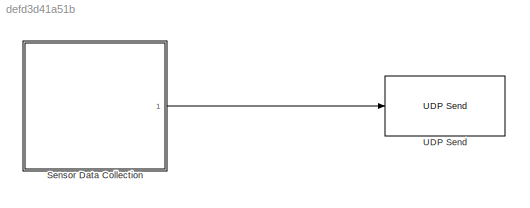
MODEL slx_defd3d41a51b
KIND model
CONFIG AbsTol = auto
CONFIG EnableMultiTasking = off
CONFIG FixedStep = auto
CONFIG MaxStep = auto
CONFIG MinStep = auto
CONFIG RelTol = 1e-3
CONFIG SampleTimeConstraint = Unconstrained
CONFIG SolverName = FixedStepAuto
CONFIG StartTime = 0.0
CONFIG StopTime = 10.0
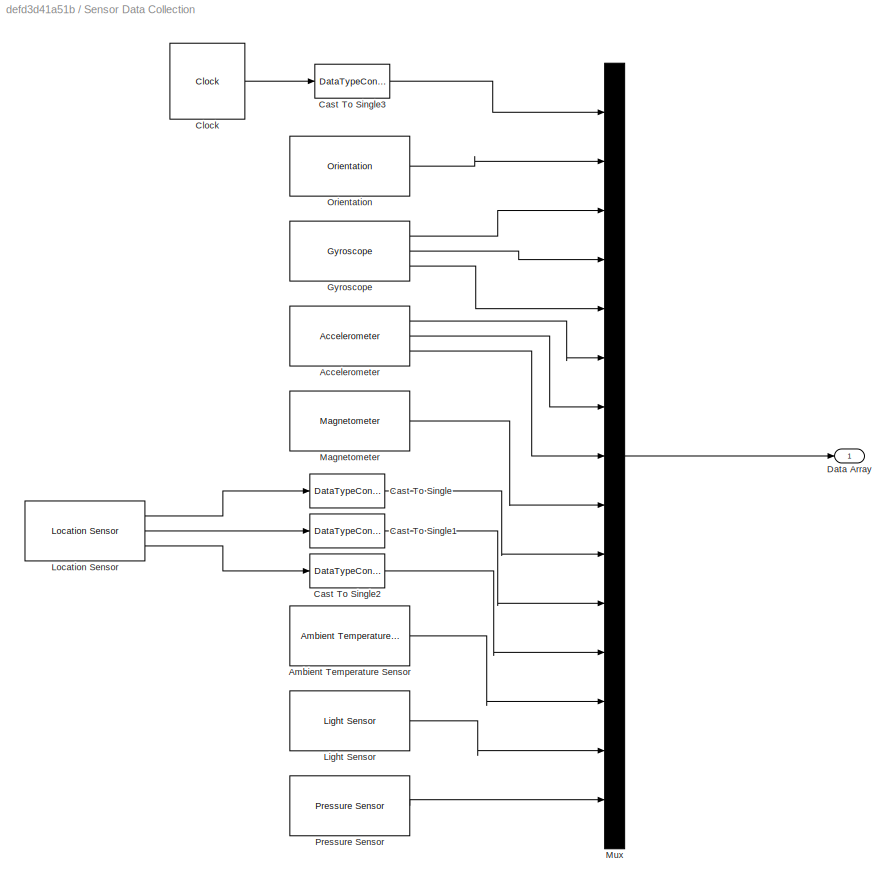
BLOCK [SubSystem] Sensor Data Collection
  Ports = [0, 1]
  RequestExecContextInheritance = off
BLOCK [Reference] Sensor Data Collection/Accelerometer  REF=androidsensorlib/Accelerometer
  Ports = [0, 3]
  SourceBlock = androidsensorlib/Accelerometer
  SourceProductBaseCode = ANDROID
  SourceType = codertarget.internal.androidAccelerometer
BLOCK [Reference] Sensor Data Collection/Ambient Temperature Sensor  REF=androidsensorlib/Ambient Temperature Sensor
  Ports = [0, 1]
  SourceBlock = androidsensorlib/Ambient Temperature Sensor
  SourceProductBaseCode = ANDROID
  SourceType = codertarget.internal.androidAmbientTemperature
BLOCK [DataTypeConversion] Sensor Data Collection/Cast To Single
  OutDataTypeStr = single
  RndMeth = Floor
  SaturateOnIntegerOverflow = off
BLOCK [DataTypeConversion] Sensor Data Collection/Cast To Single1
  OutDataTypeStr = single
  RndMeth = Floor
  SaturateOnIntegerOverflow = off
BLOCK [DataTypeConversion] Sensor Data Collection/Cast To Single2
  OutDataTypeStr = single
  RndMeth = Floor
  SaturateOnIntegerOverflow = off
BLOCK [DataTypeConversion] Sensor Data Collection/Cast To Single3
  OutDataTypeStr = single
  RndMeth = Floor
  SaturateOnIntegerOverflow = off
BLOCK [Clock] Sensor Data Collection/Clock
  DisplayTime = on
BLOCK [Outport] Sensor Data Collection/Data Array
BLOCK [Reference] Sensor Data Collection/Gyroscope  REF=androidsensorlib/Gyroscope
  Ports = [0, 3]
  SourceBlock = androidsensorlib/Gyroscope
  SourceProductBaseCode = ANDROID
  SourceType = codertarget.internal.androidGyroscope
BLOCK [Reference] Sensor Data Collection/Light Sensor  REF=androidsensorlib/Light Sensor
  Ports = [0, 1]
  SourceBlock = androidsensorlib/Light Sensor
  SourceProductBaseCode = ANDROID
  SourceType = codertarget.internal.androidLight
BLOCK [Reference] Sensor Data Collection/Location Sensor  REF=androidsensorlib/Location Sensor
  Ports = [0, 3]
  SourceBlock = androidsensorlib/Location Sensor
  SourceProductBaseCode = ANDROID
  SourceType = codertarget.internal.androidLocation
BLOCK [Reference] Sensor Data Collection/Magnetometer  REF=androidsensorlib/Magnetometer
  Ports = [0, 1]
  SourceBlock = androidsensorlib/Magnetometer
  SourceProductBaseCode = ANDROID
  SourceType = codertarget.internal.androidMagnetometer
BLOCK [Mux] Sensor Data Collection/Mux
  DisplayOption = bar
  Inputs = 15
  Ports = [15, 1]
BLOCK [Reference] Sensor Data Collection/Orientation  REF=androidsensorlib/Orientation
  Ports = [0, 1]
  SourceBlock = androidsensorlib/Orientation
  SourceProductBaseCode = ANDROID
  SourceType = codertarget.internal.androidOrientation
BLOCK [Reference] Sensor Data Collection/Pressure Sensor  REF=androidsensorlib/Pressure Sensor
  Ports = [0, 1]
  SourceBlock = androidsensorlib/Pressure Sensor
  SourceProductBaseCode = ANDROID
  SourceType = codertarget.internal.androidPressure
BLOCK [Reference] UDP Send  REF=androidcommunicationlib/UDP Send
  Ports = [1]
  SourceBlock = androidcommunicationlib/UDP Send
  SourceProductBaseCode = ANDROID
  SourceType = UDP Send
LINE Sensor Data Collection/Accelerometer:1 -> Sensor Data Collection/Mux:6
LINE Sensor Data Collection/Accelerometer:2 -> Sensor Data Collection/Mux:7
LINE Sensor Data Collection/Accelerometer:3 -> Sensor Data Collection/Mux:8
LINE Sensor Data Collection/Ambient Temperature Sensor:1 -> Sensor Data Collection/Mux:13
LINE Sensor Data Collection/Cast To Single1:1 -> Sensor Data Collection/Mux:11
LINE Sensor Data Collection/Cast To Single2:1 -> Sensor Data Collection/Mux:12
LINE Sensor Data Collection/Cast To Single3:1 -> Sensor Data Collection/Mux:1
LINE Sensor Data Collection/Cast To Single:1 -> Sensor Data Collection/Mux:10
LINE Sensor Data Collection/Clock:1 -> Sensor Data Collection/Cast To Single3:1
LINE Sensor Data Collection/Gyroscope:1 -> Sensor Data Collection/Mux:3
LINE Sensor Data Collection/Gyroscope:2 -> Sensor Data Collection/Mux:4
LINE Sensor Data Collection/Gyroscope:3 -> Sensor Data Collection/Mux:5
LINE Sensor Data Collection/Light Sensor:1 -> Sensor Data Collection/Mux:14
LINE Sensor Data Collection/Location Sensor:1 -> Sensor Data Collection/Cast To Single:1
LINE Sensor Data Collection/Location Sensor:2 -> Sensor Data Collection/Cast To Single1:1
LINE Sensor Data Collection/Location Sensor:3 -> Sensor Data Collection/Cast To Single2:1
LINE Sensor Data Collection/Magnetometer:1 -> Sensor Data Collection/Mux:9
LINE Sensor Data Collection/Mux:1 -> Sensor Data Collection/Data Array:1
LINE Sensor Data Collection/Orientation:1 -> Sensor Data Collection/Mux:2
LINE Sensor Data Collection/Pressure Sensor:1 -> Sensor Data Collection/Mux:15
LINE Sensor Data Collection:1 -> UDP Send:1
